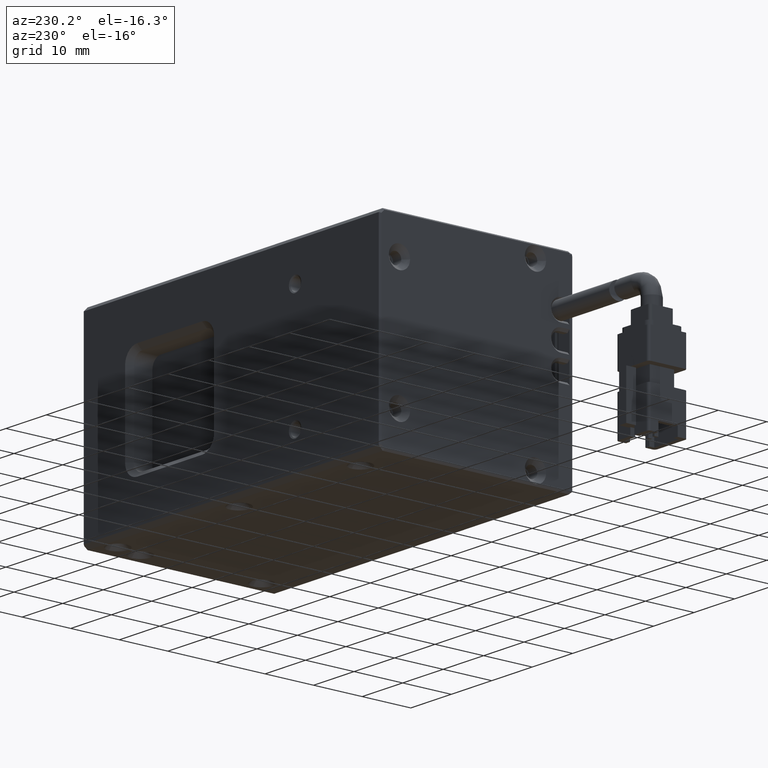
[diagram: clean part render]
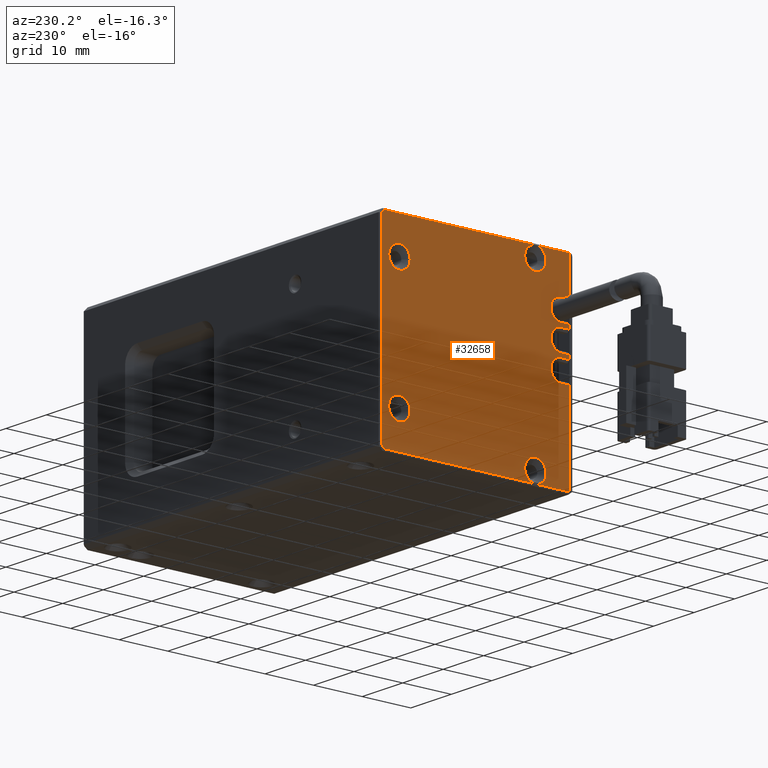
[diagram: same view with one face highlighted and labeled with its STEP entity id]
A machine part, auxiliary view. The second image highlights one B-rep face of the part: STEP entity #32658.
In plain terms, the highlighted planar face has unit normal (1, 0, -0).
Its self-contained STEP definition (entity closure, byte-faithful):
#70 = DIRECTION ( 'NONE',  ( 1.465869376060762200E-016, -0.7071067811865515700, 0.7071067811865435800 ) ) ;
#127 = DIRECTION ( 'NONE',  ( -1.000000000000000000, -9.572519544903140500E-017, 1.301620591984826300E-017 ) ) ;
#827 = EDGE_CURVE ( 'NONE', #932, #22769, #33302, .T. ) ;
#905 = DIRECTION ( 'NONE',  ( -1.281792426635851100E-016, 0.7071067811865474600, 0.7071067811865474600 ) ) ;
#932 = VERTEX_POINT ( 'NONE', #12526 ) ;
#952 = VECTOR ( 'NONE', #70, 1000.000000000000000 ) ;
#1053 = CARTESIAN_POINT ( 'NONE',  ( -44.23777979799790900, 29.18138602246008200, 7.500000000009539000 ) ) ;
#1142 = VERTEX_POINT ( 'NONE', #2691 ) ;
#1202 = AXIS2_PLACEMENT_3D ( 'NONE', #3574, #22137, #6302 ) ;
#1609 = CARTESIAN_POINT ( 'NONE',  ( -44.23777979801199900, -5.818613977539927300, 32.10000000000954400 ) ) ;
#1811 = ORIENTED_EDGE ( 'NONE', *, *, #2035, .F. ) ;
#2035 = EDGE_CURVE ( 'NONE', #3178, #13772, #25247, .T. ) ;
#2150 = CARTESIAN_POINT ( 'NONE',  ( -44.23777979801199900, -5.818613977539924600, 17.90000000000952000 ) ) ;
#2165 = ORIENTED_EDGE ( 'NONE', *, *, #12422, .F. ) ;
#2490 = EDGE_CURVE ( 'NONE', #22769, #932, #2838, .T. ) ;
#2579 = VERTEX_POINT ( 'NONE', #16466 ) ;
#2691 = CARTESIAN_POINT ( 'NONE',  ( -44.23777979799790200, 1.181386022460057400, 0.2999999999956496900 ) ) ;
#2838 = CIRCLE ( 'NONE', #31036, 2.200000000043473000 ) ;
#3081 = VERTEX_POINT ( 'NONE', #28620 ) ;
#3137 = VECTOR ( 'NONE', #16801, 1000.000000000000000 ) ;
#3169 = CIRCLE ( 'NONE', #28592, 2.099999999961712500 ) ;
#3178 = VERTEX_POINT ( 'NONE', #10372 ) ;
#3445 = PLANE ( 'NONE',  #1202 ) ;
#3484 = CARTESIAN_POINT ( 'NONE',  ( -44.23777979801199200, -5.818613977539921900, 9.534079272586290300E-012 ) ) ;
#3521 = EDGE_CURVE ( 'NONE', #22751, #3081, #30575, .T. ) ;
#3536 = EDGE_CURVE ( 'NONE', #30054, #33817, #3169, .T. ) ;
#3574 = CARTESIAN_POINT ( 'NONE',  ( -44.23777979801200600, 33.18138602246008200, 9.540235806202533600E-012 ) ) ;
#3588 = EDGE_CURVE ( 'NONE', #33817, #14319, #22730, .T. ) ;
#3634 = DIRECTION ( 'NONE',  ( -1.000000000000000000, -9.572519544903140500E-017, 1.301620591984826300E-017 ) ) ;
#3719 = DIRECTION ( 'NONE',  ( 0.0000000000000000000, 0.0000000000000000000, 1.000000000000000000 ) ) ;
#3873 = VECTOR ( 'NONE', #8877, 1000.000000000000000 ) ;
#3895 = CIRCLE ( 'NONE', #13355, 2.200000000013901100 ) ;
#3976 = CARTESIAN_POINT ( 'NONE',  ( -44.23777979801199900, -5.818613977539926400, 27.90000000000952000 ) ) ;
#4178 = VECTOR ( 'NONE', #905, 1000.000000000000100 ) ;
#4336 = VECTOR ( 'NONE', #9707, 1000.000000000000000 ) ;
#4395 = EDGE_LOOP ( 'NONE', ( #20175, #18875 ) ) ;
#4471 = EDGE_CURVE ( 'NONE', #22014, #8011, #34220, .T. ) ;
#4632 = EDGE_LOOP ( 'NONE', ( #25061, #2165 ) ) ;
#5010 = LINE ( 'NONE', #32715, #4178 ) ;
#5175 = LINE ( 'NONE', #12351, #4336 ) ;
#5193 = EDGE_CURVE ( 'NONE', #13772, #9046, #27015, .T. ) ;
#5623 = ORIENTED_EDGE ( 'NONE', *, *, #4471, .F. ) ;
#5642 = CARTESIAN_POINT ( 'NONE',  ( -44.23777979799790200, -4.118613977539927100, 30.00000000000953200 ) ) ;
#5773 = CARTESIAN_POINT ( 'NONE',  ( -44.23777979801199900, -5.818613977539925500, 22.10000000000954400 ) ) ;
#5796 = CARTESIAN_POINT ( 'NONE',  ( -44.23777979799790900, 29.18138602246008200, 9.699999999962063400 ) ) ;
#5981 = VERTEX_POINT ( 'NONE', #5796 ) ;
#6302 = DIRECTION ( 'NONE',  ( -1.301620591984827800E-017, 1.578598363138894200E-016, -1.000000000000000000 ) ) ;
#6346 = ORIENTED_EDGE ( 'NONE', *, *, #10360, .F. ) ;
#6586 = CARTESIAN_POINT ( 'NONE',  ( -44.23777979801200600, 32.88138602246007700, 39.07573593129762200 ) ) ;
#6614 = VERTEX_POINT ( 'NONE', #10116 ) ;
#6972 = CARTESIAN_POINT ( 'NONE',  ( -44.23777979801199900, -5.818613977539925500, 22.90000000000952000 ) ) ;
#7131 = DIRECTION ( 'NONE',  ( -1.000000000000000000, -9.572519544882688100E-017, 1.301620591984826300E-017 ) ) ;
#7813 = ORIENTED_EDGE ( 'NONE', *, *, #26792, .F. ) ;
#8011 = VERTEX_POINT ( 'NONE', #13282 ) ;
#8343 = DIRECTION ( 'NONE',  ( 0.0000000000000000000, 0.0000000000000000000, 1.000000000000000000 ) ) ;
#8541 = CIRCLE ( 'NONE', #33595, 2.199999999982063400 ) ;
#8680 = VECTOR ( 'NONE', #25403, 1000.000000000000000 ) ;
#8708 = DIRECTION ( 'NONE',  ( -1.942890293094023500E-016, 1.000000000000000000, 1.578598363138894200E-016 ) ) ;
#8737 = EDGE_CURVE ( 'NONE', #20568, #31857, #31368, .T. ) ;
#8877 = DIRECTION ( 'NONE',  ( 1.301620591984827800E-017, -1.578598363138894200E-016, 1.000000000000000000 ) ) ;
#8933 = VECTOR ( 'NONE', #24685, 1000.000000000000000 ) ;
#9046 = VERTEX_POINT ( 'NONE', #3976 ) ;
#9262 = VECTOR ( 'NONE', #19181, 1000.000000000000000 ) ;
#9342 = CARTESIAN_POINT ( 'NONE',  ( -44.23777979801200600, 32.25712195374813300, 39.70000000000953800 ) ) ;
#9409 = ORIENTED_EDGE ( 'NONE', *, *, #26422, .F. ) ;
#9707 = DIRECTION ( 'NONE',  ( -1.942890293094023500E-016, 1.000000000000000000, 1.578598363138894200E-016 ) ) ;
#9713 = CARTESIAN_POINT ( 'NONE',  ( -44.23777979801199200, -5.818613977539926400, 27.10000000000954800 ) ) ;
#9810 = ORIENTED_EDGE ( 'NONE', *, *, #3521, .F. ) ;
#10044 = DIRECTION ( 'NONE',  ( 1.301620591984827800E-017, -1.578598363138894200E-016, 1.000000000000000000 ) ) ;
#10116 = CARTESIAN_POINT ( 'NONE',  ( -44.23777979801199200, -5.818613977539926400, 27.10000000000954400 ) ) ;
#10170 = AXIS2_PLACEMENT_3D ( 'NONE', #10731, #29234, #13365 ) ;
#10331 = EDGE_LOOP ( 'NONE', ( #23172, #9810 ) ) ;
#10360 = EDGE_CURVE ( 'NONE', #24010, #20459, #18287, .T. ) ;
#10372 = CARTESIAN_POINT ( 'NONE',  ( -44.23777979798721600, -4.118613977539928000, 32.10000000004789900 ) ) ;
#10475 = VECTOR ( 'NONE', #10044, 1000.000000000000000 ) ;
#10513 = CARTESIAN_POINT ( 'NONE',  ( -44.23777979799790200, 1.181386022460056800, 2.500000000009550100 ) ) ;
#10639 = VECTOR ( 'NONE', #8708, 1000.000000000000000 ) ;
#10731 = CARTESIAN_POINT ( 'NONE',  ( -44.23777979795924900, -4.118613977539926200, 20.00000000000953200 ) ) ;
#10933 = DIRECTION ( 'NONE',  ( -1.000000000000000000, -1.942890293094023500E-016, 1.301620591984824700E-017 ) ) ;
#12100 = FACE_BOUND ( 'NONE', #10331, .T. ) ;
#12220 = CIRCLE ( 'NONE', #19184, 2.199999999952524800 ) ;
#12351 = CARTESIAN_POINT ( 'NONE',  ( -44.23777979801199900, -5.818613977539927300, 32.10000000000954400 ) ) ;
#12413 = CARTESIAN_POINT ( 'NONE',  ( -44.23777979805474600, -4.118613977539926200, 25.00000000000953200 ) ) ;
#12422 = EDGE_CURVE ( 'NONE', #18805, #5981, #13889, .T. ) ;
#12526 = CARTESIAN_POINT ( 'NONE',  ( -44.23777979805475300, 26.98138602241660400, 32.50000000000954300 ) ) ;
#12684 = CARTESIAN_POINT ( 'NONE',  ( -44.23777979801200600, 32.88138602246007700, 9.540188448251638100E-012 ) ) ;
#13072 = EDGE_CURVE ( 'NONE', #6614, #30054, #32983, .T. ) ;
#13177 = DIRECTION ( 'NONE',  ( 0.0000000000000000000, -1.971276677233915900E-016, 1.000000000000000000 ) ) ;
#13282 = CARTESIAN_POINT ( 'NONE',  ( -44.23777979801199900, -5.818613977539924600, 17.90000000000952000 ) ) ;
#13355 = AXIS2_PLACEMENT_3D ( 'NONE', #13491, #32024, #16141 ) ;
#13365 = DIRECTION ( 'NONE',  ( 0.0000000000000000000, 0.0000000000000000000, 1.000000000000000000 ) ) ;
#13491 = CARTESIAN_POINT ( 'NONE',  ( -44.23777979799790200, 1.181386022460056800, 2.500000000009550100 ) ) ;
#13494 = VERTEX_POINT ( 'NONE', #33199 ) ;
#13680 = CARTESIAN_POINT ( 'NONE',  ( -44.23777979799790200, 1.181386022460056800, 37.50000000000955700 ) ) ;
#13772 = VERTEX_POINT ( 'NONE', #21922 ) ;
#13889 = CIRCLE ( 'NONE', #25915, 2.199999999952524800 ) ;
#14203 = ORIENTED_EDGE ( 'NONE', *, *, #8737, .F. ) ;
#14319 = VERTEX_POINT ( 'NONE', #25242 ) ;
#14708 = VERTEX_POINT ( 'NONE', #1609 ) ;
#15027 = EDGE_LOOP ( 'NONE', ( #17605, #29520 ) ) ;
#15163 = ORIENTED_EDGE ( 'NONE', *, *, #28189, .F. ) ;
#16006 = CARTESIAN_POINT ( 'NONE',  ( -44.23777979805475300, 29.18138602246007500, 32.50000000000954300 ) ) ;
#16141 = DIRECTION ( 'NONE',  ( 0.0000000000000000000, -1.971276677233915900E-016, 1.000000000000000000 ) ) ;
#16301 = CARTESIAN_POINT ( 'NONE',  ( -44.23777979801199900, -5.818613977539937900, 39.70000000000952400 ) ) ;
#16332 = DIRECTION ( 'NONE',  ( 0.0000000000000000000, -1.000000000000000000, 0.0000000000000000000 ) ) ;
#16347 = VECTOR ( 'NONE', #33582, 1000.000000000000000 ) ;
#16466 = CARTESIAN_POINT ( 'NONE',  ( -44.23777979798209300, -4.118613977539926200, 22.09999999997911100 ) ) ;
#16638 = AXIS2_PLACEMENT_3D ( 'NONE', #10513, #29025, #13177 ) ;
#16737 = LINE ( 'NONE', #3484, #8933 ) ;
#16801 = DIRECTION ( 'NONE',  ( 1.942890293094023500E-016, -1.000000000000000000, -1.578598363138894200E-016 ) ) ;
#17003 = EDGE_CURVE ( 'NONE', #1142, #21253, #32244, .T. ) ;
#17315 = VECTOR ( 'NONE', #31928, 1000.000000000000000 ) ;
#17605 = ORIENTED_EDGE ( 'NONE', *, *, #827, .F. ) ;
#17731 = EDGE_CURVE ( 'NONE', #3081, #22751, #8541, .T. ) ;
#17946 = ORIENTED_EDGE ( 'NONE', *, *, #3588, .F. ) ;
#18273 = FACE_BOUND ( 'NONE', #15027, .T. ) ;
#18287 = LINE ( 'NONE', #12684, #10475 ) ;
#18423 = CARTESIAN_POINT ( 'NONE',  ( -44.23777979799790200, 1.181386022460056300, 4.700000000023450800 ) ) ;
#18559 = ORIENTED_EDGE ( 'NONE', *, *, #18814, .F. ) ;
#18644 = DIRECTION ( 'NONE',  ( 0.0000000000000000000, -1.000000000000000000, 0.0000000000000000000 ) ) ;
#18670 = CARTESIAN_POINT ( 'NONE',  ( -44.23777979801199200, -5.818613977539921900, 9.534079272586290300E-012 ) ) ;
#18776 = CARTESIAN_POINT ( 'NONE',  ( -44.23777979805475300, 31.38138602250355200, 32.50000000000954300 ) ) ;
#18805 = VERTEX_POINT ( 'NONE', #21504 ) ;
#18814 = EDGE_CURVE ( 'NONE', #22590, #2579, #33696, .T. ) ;
#18875 = ORIENTED_EDGE ( 'NONE', *, *, #17003, .F. ) ;
#19118 = FACE_OUTER_BOUND ( 'NONE', #22708, .T. ) ;
#19181 = DIRECTION ( 'NONE',  ( 1.214714603413407200E-015, -1.000000000000000000, -1.178285410417894800E-015 ) ) ;
#19184 = AXIS2_PLACEMENT_3D ( 'NONE', #26773, #10933, #29457 ) ;
#19407 = CARTESIAN_POINT ( 'NONE',  ( -44.23777979801200600, 33.18138602246008200, 0.3000000000095426900 ) ) ;
#19468 = CARTESIAN_POINT ( 'NONE',  ( -44.23777979801199900, -5.818613977539921900, 9.534079272586290300E-012 ) ) ;
#19498 = CARTESIAN_POINT ( 'NONE',  ( -44.23777979805475300, 29.18138602246007500, 32.50000000000954300 ) ) ;
#19600 = DIRECTION ( 'NONE',  ( -1.000000000000000000, -1.942890293094023500E-016, 1.301620591984824700E-017 ) ) ;
#19906 = AXIS2_PLACEMENT_3D ( 'NONE', #5642, #24138, #8343 ) ;
#20147 = EDGE_CURVE ( 'NONE', #14319, #22590, #24350, .T. ) ;
#20153 = LINE ( 'NONE', #19407, #10639 ) ;
#20175 = ORIENTED_EDGE ( 'NONE', *, *, #22724, .F. ) ;
#20387 = VECTOR ( 'NONE', #21593, 1000.000000000000000 ) ;
#20459 = VERTEX_POINT ( 'NONE', #6586 ) ;
#20463 = EDGE_CURVE ( 'NONE', #14708, #31857, #34318, .T. ) ;
#20568 = VERTEX_POINT ( 'NONE', #9342 ) ;
#20945 = ORIENTED_EDGE ( 'NONE', *, *, #26591, .F. ) ;
#21242 = EDGE_CURVE ( 'NONE', #2579, #22014, #23799, .T. ) ;
#21253 = VERTEX_POINT ( 'NONE', #18423 ) ;
#21504 = CARTESIAN_POINT ( 'NONE',  ( -44.23777979799790900, 29.18138602246008200, 5.300000000057014700 ) ) ;
#21593 = DIRECTION ( 'NONE',  ( -1.942890293094023500E-016, 1.000000000000000000, 1.578598363138894200E-016 ) ) ;
#21884 = CARTESIAN_POINT ( 'NONE',  ( -44.23777979801199900, -5.818613977539926400, 27.90000000000952000 ) ) ;
#21922 = CARTESIAN_POINT ( 'NONE',  ( -44.23777979800495100, -4.118613977539927100, 27.90000000001657600 ) ) ;
#22014 = VERTEX_POINT ( 'NONE', #30590 ) ;
#22137 = DIRECTION ( 'NONE',  ( 1.000000000000000000, 1.942890293094023500E-016, -1.301620591984824700E-017 ) ) ;
#22197 = DIRECTION ( 'NONE',  ( 0.0000000000000000000, -1.000000000000000000, 0.0000000000000000000 ) ) ;
#22590 = VERTEX_POINT ( 'NONE', #33459 ) ;
#22708 = EDGE_LOOP ( 'NONE', ( #31889, #31448, #31198, #1811, #7813, #23032, #14203, #9409, #6346, #15163, #20945, #26038, #5623, #33708, #18559, #26177, #17946, #30998 ) ) ;
#22724 = EDGE_CURVE ( 'NONE', #21253, #1142, #3895, .T. ) ;
#22730 = LINE ( 'NONE', #6972, #8680 ) ;
#22751 = VERTEX_POINT ( 'NONE', #29374 ) ;
#22769 = VERTEX_POINT ( 'NONE', #18776 ) ;
#22888 = EDGE_CURVE ( 'NONE', #9046, #6614, #16737, .T. ) ;
#22931 = CARTESIAN_POINT ( 'NONE',  ( -44.23777979799790200, 1.181386022460056800, 37.50000000000955700 ) ) ;
#23032 = ORIENTED_EDGE ( 'NONE', *, *, #20463, .T. ) ;
#23172 = ORIENTED_EDGE ( 'NONE', *, *, #17731, .F. ) ;
#23375 = LINE ( 'NONE', #19468, #3873 ) ;
#23394 = AXIS2_PLACEMENT_3D ( 'NONE', #19498, #3634, #22197 ) ;
#23799 = CIRCLE ( 'NONE', #10170, 2.099999999984447600 ) ;
#24010 = VERTEX_POINT ( 'NONE', #26913 ) ;
#24138 = DIRECTION ( 'NONE',  ( -1.000000000000000000, -1.942890293094023500E-016, 1.301620591984824700E-017 ) ) ;
#24350 = LINE ( 'NONE', #18670, #17315 ) ;
#24685 = DIRECTION ( 'NONE',  ( -1.301620591984827800E-017, 1.578598363138894200E-016, -1.000000000000000000 ) ) ;
#25017 = CARTESIAN_POINT ( 'NONE',  ( -44.23777979801199900, -5.818613977539921900, 9.534079272586290300E-012 ) ) ;
#25033 = AXIS2_PLACEMENT_3D ( 'NONE', #22931, #7131, #25582 ) ;
#25061 = ORIENTED_EDGE ( 'NONE', *, *, #31225, .F. ) ;
#25242 = CARTESIAN_POINT ( 'NONE',  ( -44.23777979801199200, -5.818613977539925500, 22.90000000000952000 ) ) ;
#25247 = CIRCLE ( 'NONE', #19906, 2.100000000014007100 ) ;
#25322 = FACE_BOUND ( 'NONE', #4632, .T. ) ;
#25403 = DIRECTION ( 'NONE',  ( 1.214714603413407200E-015, -1.000000000000000000, -1.178285410417901500E-015 ) ) ;
#25582 = DIRECTION ( 'NONE',  ( 0.0000000000000000000, -1.000000000000000000, 0.0000000000000000000 ) ) ;
#25915 = AXIS2_PLACEMENT_3D ( 'NONE', #1053, #19600, #3719 ) ;
#26038 = ORIENTED_EDGE ( 'NONE', *, *, #31400, .T. ) ;
#26177 = ORIENTED_EDGE ( 'NONE', *, *, #20147, .F. ) ;
#26422 = EDGE_CURVE ( 'NONE', #20459, #20568, #29174, .T. ) ;
#26472 = CARTESIAN_POINT ( 'NONE',  ( -44.23777979801200600, 32.88138602246006300, 39.07573593129761500 ) ) ;
#26591 = EDGE_CURVE ( 'NONE', #13494, #31599, #20153, .T. ) ;
#26756 = CARTESIAN_POINT ( 'NONE',  ( -44.23777979804405900, -4.118613977539927100, 27.09999999999997300 ) ) ;
#26773 = CARTESIAN_POINT ( 'NONE',  ( -44.23777979799790900, 29.18138602246008200, 7.500000000009539000 ) ) ;
#26792 = EDGE_CURVE ( 'NONE', #14708, #3178, #5175, .T. ) ;
#26913 = CARTESIAN_POINT ( 'NONE',  ( -44.23777979801200600, 32.88138602246007700, 0.9242640687214727100 ) ) ;
#27015 = LINE ( 'NONE', #21884, #9262 ) ;
#27235 = VECTOR ( 'NONE', #27713, 1000.000000000000000 ) ;
#27713 = DIRECTION ( 'NONE',  ( 1.301620591984827800E-017, -1.578598363138894200E-016, 1.000000000000000000 ) ) ;
#28189 = EDGE_CURVE ( 'NONE', #31599, #24010, #5010, .T. ) ;
#28592 = AXIS2_PLACEMENT_3D ( 'NONE', #12413, #30957, #30325 ) ;
#28620 = CARTESIAN_POINT ( 'NONE',  ( -44.23777979799790200, -1.018613977522006700, 37.50000000000955700 ) ) ;
#29025 = DIRECTION ( 'NONE',  ( -1.000000000000000000, -1.942890293094023500E-016, 1.301620591984824700E-017 ) ) ;
#29174 = LINE ( 'NONE', #26472, #952 ) ;
#29234 = DIRECTION ( 'NONE',  ( -1.000000000000000000, -1.942890293094023500E-016, 1.301620591984824700E-017 ) ) ;
#29374 = CARTESIAN_POINT ( 'NONE',  ( -44.23777979799790200, 3.381386022442120200, 37.50000000000955700 ) ) ;
#29457 = DIRECTION ( 'NONE',  ( 0.0000000000000000000, 0.0000000000000000000, 1.000000000000000000 ) ) ;
#29520 = ORIENTED_EDGE ( 'NONE', *, *, #2490, .F. ) ;
#30054 = VERTEX_POINT ( 'NONE', #26756 ) ;
#30325 = DIRECTION ( 'NONE',  ( 0.0000000000000000000, 0.0000000000000000000, 1.000000000000000000 ) ) ;
#30575 = CIRCLE ( 'NONE', #25033, 2.199999999982063400 ) ;
#30590 = CARTESIAN_POINT ( 'NONE',  ( -44.23777979798562400, -4.118613977539922600, 17.90000000003590200 ) ) ;
#30957 = DIRECTION ( 'NONE',  ( -1.000000000000000000, -1.942890293094023500E-016, 1.301620591984824700E-017 ) ) ;
#30998 = ORIENTED_EDGE ( 'NONE', *, *, #3536, .F. ) ;
#31036 = AXIS2_PLACEMENT_3D ( 'NONE', #16006, #127, #18644 ) ;
#31198 = ORIENTED_EDGE ( 'NONE', *, *, #5193, .F. ) ;
#31225 = EDGE_CURVE ( 'NONE', #5981, #18805, #12220, .T. ) ;
#31368 = LINE ( 'NONE', #32718, #3137 ) ;
#31400 = EDGE_CURVE ( 'NONE', #13494, #8011, #23375, .T. ) ;
#31448 = ORIENTED_EDGE ( 'NONE', *, *, #22888, .F. ) ;
#31599 = VERTEX_POINT ( 'NONE', #33744 ) ;
#31857 = VERTEX_POINT ( 'NONE', #16301 ) ;
#31889 = ORIENTED_EDGE ( 'NONE', *, *, #13072, .F. ) ;
#31928 = DIRECTION ( 'NONE',  ( -1.301620591984827800E-017, 1.578598363138894200E-016, -1.000000000000000000 ) ) ;
#32024 = DIRECTION ( 'NONE',  ( -1.000000000000000000, -1.942890293094023500E-016, 1.301620591984824700E-017 ) ) ;
#32194 = CARTESIAN_POINT ( 'NONE',  ( -44.23777979805474600, -4.118613977539924400, 22.90000000004572600 ) ) ;
#32241 = DIRECTION ( 'NONE',  ( -1.000000000000000000, -9.572519544882688100E-017, 1.301620591984826300E-017 ) ) ;
#32244 = CIRCLE ( 'NONE', #16638, 2.200000000013901100 ) ;
#32418 = FACE_BOUND ( 'NONE', #4395, .T. ) ;
#32658 = ADVANCED_FACE ( 'NONE', ( #32418, #12100, #19118, #25322, #18273 ), #3445, .F. ) ;
#32715 = CARTESIAN_POINT ( 'NONE',  ( -44.23777979801200600, 32.25712195374814700, 0.3000000000095406900 ) ) ;
#32718 = CARTESIAN_POINT ( 'NONE',  ( -44.23777979801201400, 33.18138602246006700, 39.70000000000953100 ) ) ;
#32983 = LINE ( 'NONE', #9713, #16347 ) ;
#33199 = CARTESIAN_POINT ( 'NONE',  ( -44.23777979801199900, -5.818613977539925500, 0.3000000000095369200 ) ) ;
#33302 = CIRCLE ( 'NONE', #23394, 2.200000000043473000 ) ;
#33390 = VECTOR ( 'NONE', #33966, 1000.000000000000000 ) ;
#33459 = CARTESIAN_POINT ( 'NONE',  ( -44.23777979801199900, -5.818613977539925500, 22.10000000000954000 ) ) ;
#33582 = DIRECTION ( 'NONE',  ( -1.942890293094023500E-016, 1.000000000000000000, 1.578598363138894200E-016 ) ) ;
#33595 = AXIS2_PLACEMENT_3D ( 'NONE', #13680, #32241, #16332 ) ;
#33696 = LINE ( 'NONE', #5773, #20387 ) ;
#33708 = ORIENTED_EDGE ( 'NONE', *, *, #21242, .F. ) ;
#33744 = CARTESIAN_POINT ( 'NONE',  ( -44.23777979801200600, 32.25712195374814700, 0.3000000000095423000 ) ) ;
#33817 = VERTEX_POINT ( 'NONE', #32194 ) ;
#33966 = DIRECTION ( 'NONE',  ( 1.214714603413407000E-015, -1.000000000000000000, -1.178285410417908600E-015 ) ) ;
#34220 = LINE ( 'NONE', #2150, #33390 ) ;
#34318 = LINE ( 'NONE', #25017, #27235 ) ;